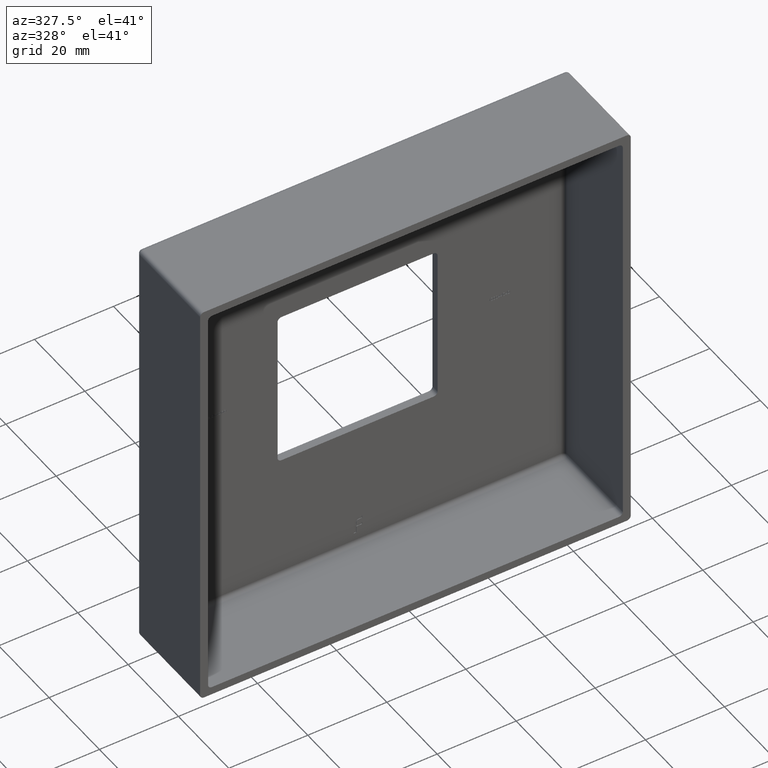
[diagram: clean part render]
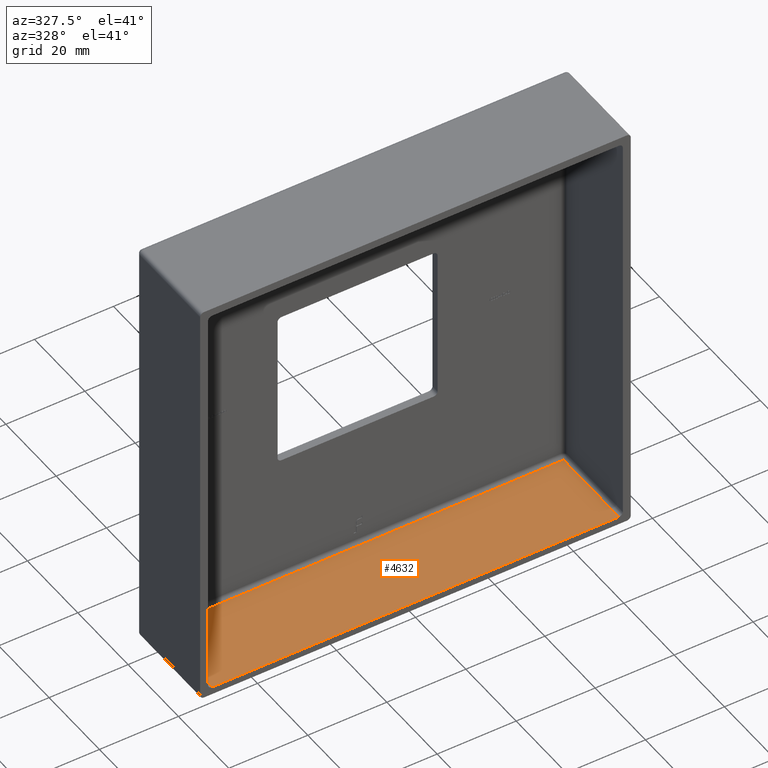
[diagram: same view with one face highlighted and labeled with its STEP entity id]
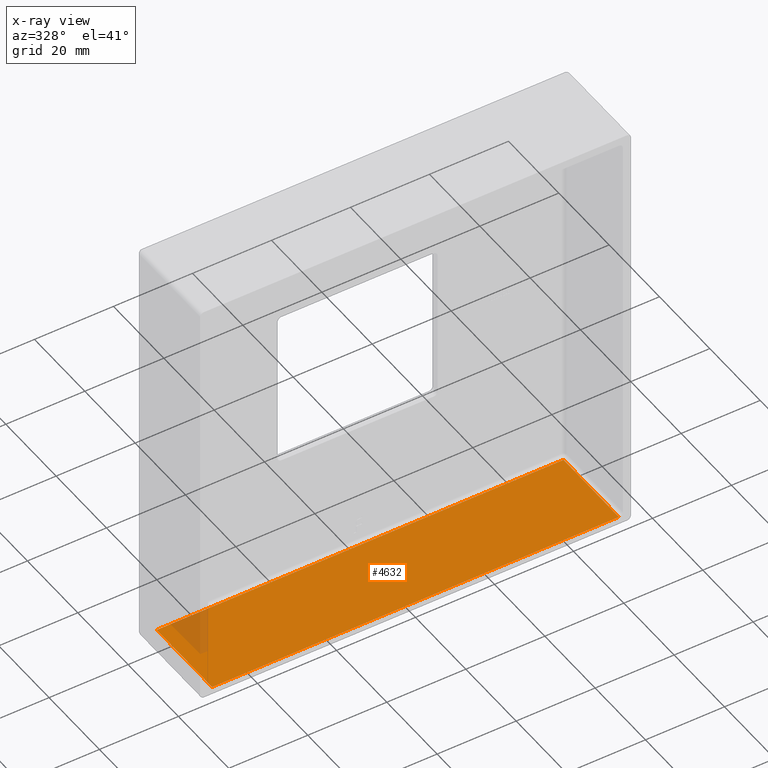
[diagram: x-ray of the same camera — body ghosted, the highlighted face saturated]
A machine part, auxiliary view. The second image highlights one B-rep face of the part: STEP entity #4632.
The next image is the same camera in x-ray: the body ghosted, the highlighted face saturated — about 3% of this face is hidden behind the body in this view.
In plain terms, the highlighted planar face has unit normal (0, -0, 1).
Its self-contained STEP definition (entity closure, byte-faithful):
#409 = DIRECTION ( 'NONE',  ( 6.365957710006634050E-17, -0.000000000000000000, 1.000000000000000000 ) ) ;
#1518 = VECTOR ( 'NONE', #3444, 1000.000000000000000 ) ;
#1567 = AXIS2_PLACEMENT_3D ( 'NONE', #3052, #409, #6980 ) ;
#1578 = DIRECTION ( 'NONE',  ( -0.000000000000000000, 1.000000000000000000, -0.000000000000000000 ) ) ;
#1631 = LINE ( 'NONE', #9254, #8064 ) ;
#2057 = ORIENTED_EDGE ( 'NONE', *, *, #9082, .T. ) ;
#3052 = CARTESIAN_POINT ( 'NONE',  ( -54.50000000000000711, 25.00000000000000000, -52.50000000000000000 ) ) ;
#3444 = DIRECTION ( 'NONE',  ( -1.000000000000000000, 0.000000000000000000, 6.365957710006634050E-17 ) ) ;
#3605 = EDGE_CURVE ( 'NONE', #15564, #4801, #10925, .T. ) ;
#4096 = CARTESIAN_POINT ( 'NONE',  ( 51.49999999999998579, 22.00000000000000000, -52.50000000000000711 ) ) ;
#4632 = ADVANCED_FACE ( 'NONE', ( #8923 ), #7032, .T. ) ;
#4801 = VERTEX_POINT ( 'NONE', #12178 ) ;
#5365 = CARTESIAN_POINT ( 'NONE',  ( -51.50000000000000711, 22.00000000000000000, -52.50000000000000000 ) ) ;
#6064 = CARTESIAN_POINT ( 'NONE',  ( -54.50000000000000711, 0.000000000000000000, -52.50000000000000000 ) ) ;
#6735 = ORIENTED_EDGE ( 'NONE', *, *, #10274, .T. ) ;
#6980 = DIRECTION ( 'NONE',  ( 1.000000000000000000, 0.000000000000000000, -6.365957710006634050E-17 ) ) ;
#7032 = PLANE ( 'NONE',  #1567 ) ;
#8027 = CARTESIAN_POINT ( 'NONE',  ( -54.50000000000000711, 22.00000000000000000, -52.50000000000000000 ) ) ;
#8064 = VECTOR ( 'NONE', #1578, 1000.000000000000000 ) ;
#8600 = EDGE_CURVE ( 'NONE', #15564, #11522, #1631, .T. ) ;
#8849 = VECTOR ( 'NONE', #9472, 1000.000000000000000 ) ;
#8923 = FACE_OUTER_BOUND ( 'NONE', #14435, .T. ) ;
#9039 = LINE ( 'NONE', #12496, #16404 ) ;
#9082 = EDGE_CURVE ( 'NONE', #11522, #11830, #13025, .T. ) ;
#9254 = CARTESIAN_POINT ( 'NONE',  ( 51.49999999999998579, 23.00000000000000000, -52.50000000000000711 ) ) ;
#9472 = DIRECTION ( 'NONE',  ( -1.000000000000000000, 0.000000000000000000, 6.365957710006634050E-17 ) ) ;
#10274 = EDGE_CURVE ( 'NONE', #11830, #4801, #9039, .T. ) ;
#10925 = LINE ( 'NONE', #6064, #1518 ) ;
#11315 = ORIENTED_EDGE ( 'NONE', *, *, #8600, .T. ) ;
#11522 = VERTEX_POINT ( 'NONE', #4096 ) ;
#11830 = VERTEX_POINT ( 'NONE', #5365 ) ;
#12178 = CARTESIAN_POINT ( 'NONE',  ( -51.50000000000000711, 0.000000000000000000, -52.50000000000000000 ) ) ;
#12496 = CARTESIAN_POINT ( 'NONE',  ( -51.50000000000000711, 0.000000000000000000, -52.50000000000000000 ) ) ;
#12843 = ORIENTED_EDGE ( 'NONE', *, *, #3605, .F. ) ;
#13025 = LINE ( 'NONE', #8027, #8849 ) ;
#13713 = CARTESIAN_POINT ( 'NONE',  ( 51.49999999999997868, 0.000000000000000000, -52.50000000000000711 ) ) ;
#14435 = EDGE_LOOP ( 'NONE', ( #2057, #6735, #12843, #11315 ) ) ;
#15564 = VERTEX_POINT ( 'NONE', #13713 ) ;
#16355 = DIRECTION ( 'NONE',  ( 0.000000000000000000, -1.000000000000000000, 0.000000000000000000 ) ) ;
#16404 = VECTOR ( 'NONE', #16355, 1000.000000000000000 ) ;